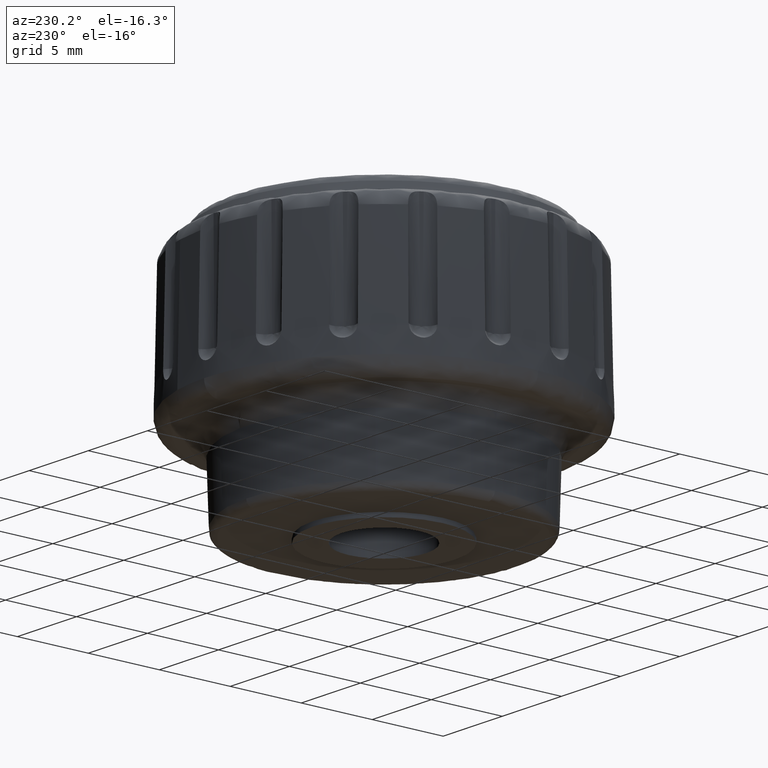
[diagram: clean part render]
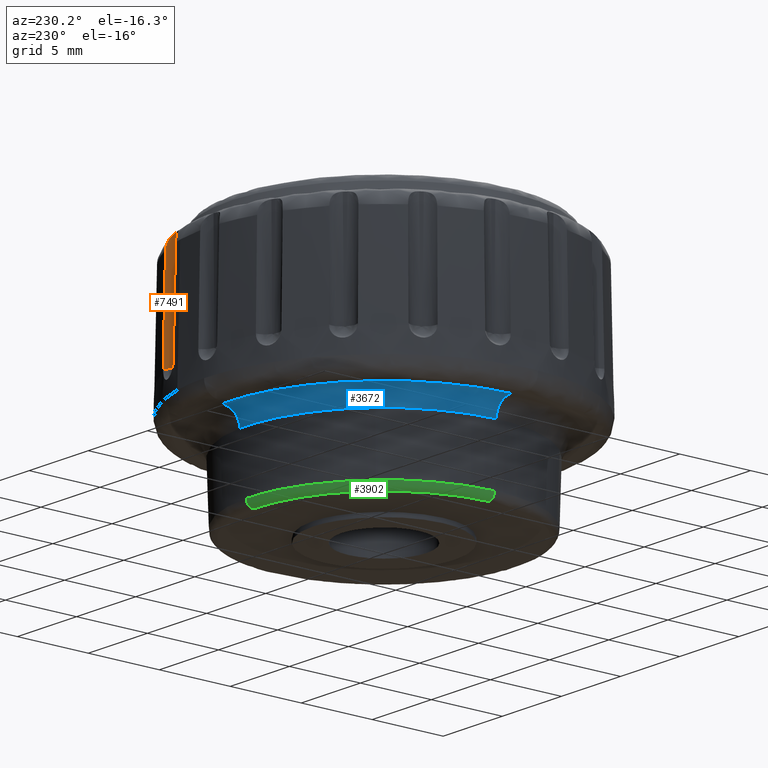
[diagram: same view with three faces highlighted in distinct colors, each labeled with its STEP entity id]
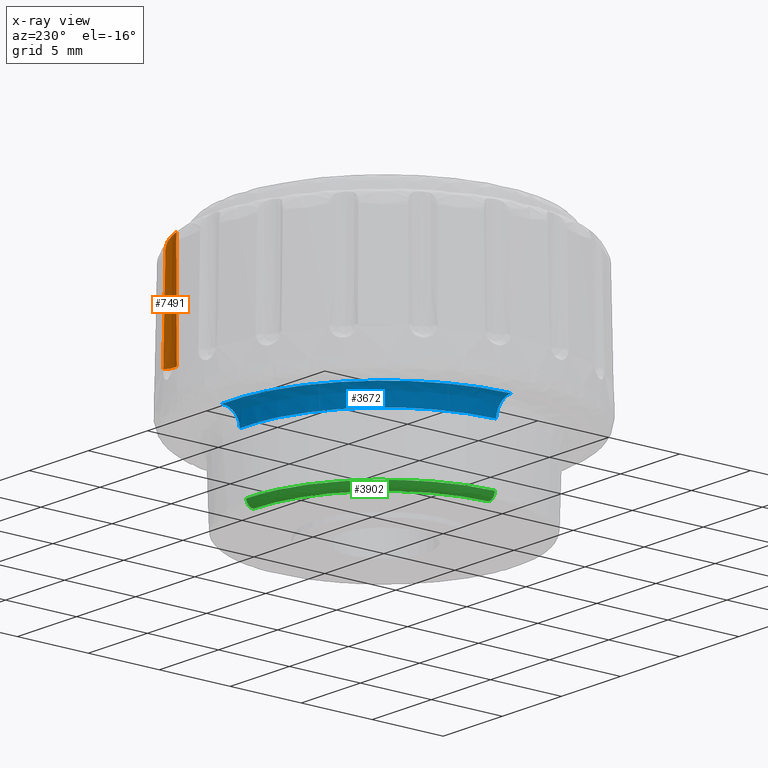
[diagram: x-ray of the same camera — body ghosted, the three highlighted faces saturated]
A machine part, auxiliary view with three faces highlighted in distinct colors.
The next image is the same camera in x-ray (body ghosted, the three faces saturated) — at least one of them is partly hidden behind the body in this view.
Their STEP definitions:

[orange] entity #7491 — the highlighted face is a freeform B-spline surface patch.
#1833=CARTESIAN_POINT('',(4.998808680543220,11.395073377640021,8.800002999999810));
#1834=VERTEX_POINT('',#1833);
#1882=CARTESIAN_POINT('',(4.952143385953650,11.266861534483120,15.524289876473100));
#1883=VERTEX_POINT('',#1882);
#1884=CARTESIAN_POINT('',(4.952143385953650,11.266861534483120,15.524289876473100));
#1885=CARTESIAN_POINT('',(4.998808680543220,11.395073377640021,8.800002999999810));
#1886=QUASI_UNIFORM_CURVE('',1,(#1884,#1885),.UNSPECIFIED.,.F.,.U.);
#1887=EDGE_CURVE('',#1883,#1834,#1886,.T.);
#4228=CARTESIAN_POINT('',(4.191839101503629,11.138007640149519,16.400364117337599));
#4229=VERTEX_POINT('',#4228);
#4230=CARTESIAN_POINT('',(4.952143385953650,11.266861534483120,15.524289876473100));
#4231=CARTESIAN_POINT('',(4.951757397201977,11.265801039103730,15.579908058427170));
#4232=CARTESIAN_POINT('',(4.948000886063662,11.262033773872201,15.634737434845441));
#4233=CARTESIAN_POINT('',(4.933507183190008,11.249587175474780,15.742842968018399));
#4234=CARTESIAN_POINT('',(4.922778209850794,11.240900975107190,15.796119486342210));
#4235=CARTESIAN_POINT('',(4.892801458195739,11.219265305523599,15.900977825317259));
#4236=CARTESIAN_POINT('',(4.873845331535049,11.206541433400790,15.951387691156590));
#4237=CARTESIAN_POINT('',(4.838579666667000,11.186070288749571,16.023099733338778));
#4238=CARTESIAN_POINT('',(4.825666636058597,11.179010690541920,16.046389131582210));
#4239=CARTESIAN_POINT('',(4.797222918052006,11.164704730357681,16.091673406006340));
#4240=CARTESIAN_POINT('',(4.781596090629875,11.157422228195159,16.113768571365611));
#4241=CARTESIAN_POINT('',(4.731404389211368,11.136321096122900,16.176549535844369));
#4242=CARTESIAN_POINT('',(4.693373776298101,11.123098196398400,16.214152117714949));
#4243=CARTESIAN_POINT('',(4.628476651513564,11.107171961516880,16.264071124665922));
#4244=CARTESIAN_POINT('',(4.605592810734239,11.102561088288139,16.279537166770439));
#4245=CARTESIAN_POINT('',(4.558579865754143,11.095380055748180,16.307420857541508));
#4246=CARTESIAN_POINT('',(4.534290680475757,11.092766046310800,16.319969034108752));
#4247=CARTESIAN_POINT('',(4.484189639275534,11.089852587694390,16.342427248912941));
#4248=CARTESIAN_POINT('',(4.458378547647553,11.089551155766360,16.352338466752371));
#4249=CARTESIAN_POINT('',(4.405215832608656,11.091691142293920,16.369562468626739));
#4250=CARTESIAN_POINT('',(4.378524001817483,11.094110386513661,16.376661733452060));
#4251=CARTESIAN_POINT('',(4.325131599196458,11.101726842837660,16.388091417198950));
#4252=CARTESIAN_POINT('',(4.298407674850782,11.106923944180100,16.392429307540912));
#4253=CARTESIAN_POINT('',(4.244948124637483,11.120258458635551,16.398436418129702));
#4254=CARTESIAN_POINT('',(4.218126431390258,11.128439834532459,16.400095660952161));
#4255=CARTESIAN_POINT('',(4.191839101503629,11.138007640149519,16.400364117337599));
#4256=B_SPLINE_CURVE_WITH_KNOTS('',3,(#4230,#4231,#4232,#4233,#4234,#4235,#4236,#4237,#4238,#4239,#4240,#4241,#4242,#4243,#4244,#4245,#4246,#4247,#4248,#4249,#4250,#4251,#4252,#4253,#4254,#4255),.UNSPECIFIED.,.F.,.U.,(4,2,2,2,2,2,2,2,2,2,2,2,4),(0.0,0.124999999999996,0.249999999999992,0.374999999999988,0.437499999999990,0.499999999999992,0.624999999999994,0.687499999999995,0.749999999999996,0.812499999999997,0.874999999999998,0.937499999999999,1.0),.UNSPECIFIED.);
#4257=EDGE_CURVE('',#1883,#4229,#4256,.T.);
#7447=CARTESIAN_POINT('',(4.998808680543024,11.395073377640131,8.800002999999801));
#7448=CARTESIAN_POINT('',(4.981141992634241,11.346534551472089,11.345762252515680));
#7449=CARTESIAN_POINT('',(4.963475024866861,11.297994956491451,13.891496173125979));
#7450=CARTESIAN_POINT('',(4.945808420869679,11.249456360962331,16.437109524258879));
#7451=CARTESIAN_POINT('',(4.638275253343533,10.975518169379452,8.801498297712289));
#7452=CARTESIAN_POINT('',(4.618251224095866,10.982806320007533,11.347732643414208));
#7453=CARTESIAN_POINT('',(4.605091248903420,10.987596159250893,13.894024100569155));
#7454=CARTESIAN_POINT('',(4.599314763999329,10.989698627813185,16.440246823976178));
#7455=CARTESIAN_POINT('',(4.118467037917753,11.164712887321469,8.805733708062078));
#7456=CARTESIAN_POINT('',(4.136791027082431,11.158043500692569,11.352540706304721));
#7457=CARTESIAN_POINT('',(4.160695066331244,11.149343141927121,13.899324579949541));
#7458=CARTESIAN_POINT('',(4.192406319388144,11.137801189723220,16.445984915250818));
#7466=(BOUNDED_SURFACE()B_SPLINE_SURFACE(3,2,((#7447,#7451,#7455),(#7448,#7452,#7456),(#7449,#7453,#7457),(#7450,#7454,#7458)),.UNSPECIFIED.,.F.,.F.,.U.)B_SPLINE_SURFACE_WITH_KNOTS((4,4),(3,3),(0.0,7.721161193759876),(0.0,1.0),.UNSPECIFIED.)GEOMETRIC_REPRESENTATION_ITEM()RATIONAL_B_SPLINE_SURFACE(((1.0,0.822510399759739,1.0),(1.0,0.842134723258429,1.0),(1.0,0.861061522385606,1.0),(1.0,0.879417337212345,1.0)))REPRESENTATION_ITEM('')SURFACE());
#7467=CARTESIAN_POINT('',(4.118467037917975,11.164712887321400,8.805733708062050));
#7468=VERTEX_POINT('',#7467);
#7469=CARTESIAN_POINT('',(4.998808680543220,11.395073377640021,8.800002999999810));
#7470=CARTESIAN_POINT('',(4.942985639907982,11.330031119075390,8.800234312704918));
#7471=CARTESIAN_POINT('',(4.829679302456356,11.234670793671050,8.800799816571832));
#7472=CARTESIAN_POINT('',(4.644862899420459,11.150790644678890,8.801909890714020));
#7473=CARTESIAN_POINT('',(4.471303690349750,11.114037189664341,8.803062382456350));
#7474=CARTESIAN_POINT('',(4.293724045536555,11.115596503715560,8.804344131377622));
#7475=CARTESIAN_POINT('',(4.175312808602572,11.144012569983211,8.805270500722571));
#7476=CARTESIAN_POINT('',(4.118467037917975,11.164712887321400,8.805733708062050));
#7477=B_SPLINE_CURVE_WITH_KNOTS('',3,(#7469,#7470,#7471,#7472,#7473,#7474,#7475,#7476),.UNSPECIFIED.,.F.,.U.,(4,1,1,1,1,4),(0.000000027471275,0.257123013934940,0.438627068675293,0.604993775773785,0.786492946229386,0.967991058824338),.UNSPECIFIED.);
#7478=EDGE_CURVE('',#1834,#7468,#7477,.T.);
#7479=ORIENTED_EDGE('',*,*,#7478,.T.);
#7480=CARTESIAN_POINT('',(4.191839101503629,11.138007640149519,16.400364117337599));
#7481=CARTESIAN_POINT('',(4.160412133904686,11.149446120908779,13.868903467068330));
#7482=CARTESIAN_POINT('',(4.136681665062008,11.158083305212701,11.337340769060660));
#7483=CARTESIAN_POINT('',(4.118467037917975,11.164712887321400,8.805733708062050));
#7484=QUASI_UNIFORM_CURVE('',3,(#7480,#7481,#7482,#7483),.UNSPECIFIED.,.F.,.U.);
#7485=EDGE_CURVE('',#4229,#7468,#7484,.T.);
#7486=ORIENTED_EDGE('',*,*,#7485,.F.);
#7487=ORIENTED_EDGE('',*,*,#4257,.F.);
#7488=ORIENTED_EDGE('',*,*,#1887,.T.);
#7489=EDGE_LOOP('',(#7479,#7486,#7487,#7488));
#7490=FACE_OUTER_BOUND('',#7489,.T.);
#7491=ADVANCED_FACE('',(#7490),#7466,.F.);

[blue] entity #3672 — the highlighted face is a freeform B-spline surface patch.
#1396=CARTESIAN_POINT('',(-7.091620016946317,6.498272501712165,4.831420556919911));
#1397=VERTEX_POINT('',#1396);
#1403=CARTESIAN_POINT('',(0.670740437602922,9.595245044403225,4.831421001800820));
#1404=VERTEX_POINT('',#1403);
#1405=CARTESIAN_POINT('',(-7.091620016946317,6.498272501712165,4.831420556919911));
#1406=CARTESIAN_POINT('',(-6.757015564982577,6.863479604386380,4.831420573719243));
#1407=CARTESIAN_POINT('',(-6.130165259743532,7.449467416923433,4.831420606198816));
#1408=CARTESIAN_POINT('',(-5.101217936245286,8.181520345119951,4.831420661871003));
#1409=CARTESIAN_POINT('',(-4.110797482058933,8.721297754972481,4.831420717150437));
#1410=CARTESIAN_POINT('',(-2.958859848073892,9.180898165850465,4.831420783170876));
#1411=CARTESIAN_POINT('',(-1.821350774396432,9.471009974842064,4.831420850044522));
#1412=CARTESIAN_POINT('',(-0.568386306073973,9.626286453879311,4.831420925391594));
#1413=CARTESIAN_POINT('',(0.221553780546700,9.626666665905816,4.831420973895301));
#1414=CARTESIAN_POINT('',(0.670740437602922,9.595245044403225,4.831421001800820));
#1415=B_SPLINE_CURVE_WITH_KNOTS('',3,(#1405,#1406,#1407,#1408,#1409,#1410,#1411,#1412,#1413,#1414),.UNSPECIFIED.,.F.,.U.,(4,1,1,1,1,1,1,4),(1.092673E-009,1.485940040450902,2.566626372317892,3.782397828070034,4.863075657889571,6.281477043662079,7.294621377522667,8.645474102517301),.UNSPECIFIED.);
#1416=EDGE_CURVE('',#1397,#1404,#1415,.T.);
#1501=CARTESIAN_POINT('',(-9.617900552514328,0.120868465202919,4.831421055692891));
#1502=VERTEX_POINT('',#1501);
#1510=CARTESIAN_POINT('',(-9.617900552514328,0.120868465202919,4.831421055692891));
#1511=CARTESIAN_POINT('',(-9.614229236711518,0.413090456322591,4.831421032908760));
#1512=CARTESIAN_POINT('',(-9.572802532351421,1.124979075598546,4.831420977383458));
#1513=CARTESIAN_POINT('',(-9.403243104581527,2.117350185540474,4.831420899911072));
#1514=CARTESIAN_POINT('',(-9.114887999307641,3.118877012646245,4.831420821650296));
#1515=CARTESIAN_POINT('',(-8.710769961785518,4.139123930567073,4.831420741857441));
#1516=CARTESIAN_POINT('',(-8.066824311787187,5.310871059734204,4.831420650102860));
#1517=CARTESIAN_POINT('',(-7.449511673907006,6.107766586126360,4.831420587588761));
#1518=CARTESIAN_POINT('',(-7.091620016946317,6.498272501712165,4.831420556919911));
#1519=B_SPLINE_CURVE_WITH_KNOTS('',3,(#1510,#1511,#1512,#1513,#1514,#1515,#1516,#1517,#1518),.UNSPECIFIED.,.F.,.U.,(4,1,1,1,1,1,4),(2.789434E-009,0.876737393546693,2.137055801765936,3.013795702432945,4.000126820879091,5.424831216021401,7.013922520523146),.UNSPECIFIED.);
#1520=EDGE_CURVE('',#1502,#1397,#1519,.T.);
#3462=CARTESIAN_POINT('',(0.754204565518100,10.789237108793451,5.999998500495471));
#3463=VERTEX_POINT('',#3462);
#3464=CARTESIAN_POINT('',(0.670740437602922,9.595245044403225,4.831421001800820));
#3465=CARTESIAN_POINT('',(0.670863419889352,9.597004361582059,4.898875334487622));
#3466=CARTESIAN_POINT('',(0.672016869729839,9.613504982754460,5.047911041001797));
#3467=CARTESIAN_POINT('',(0.676865894332006,9.682872470795610,5.274917855741547));
#3468=CARTESIAN_POINT('',(0.684763241942027,9.795847596896225,5.478227207120213));
#3469=CARTESIAN_POINT('',(0.694910066009423,9.941002500180510,5.652759094478349));
#3470=CARTESIAN_POINT('',(0.705746968836736,10.096029291948231,5.783951641043132));
#3471=CARTESIAN_POINT('',(0.719155739037928,10.287847808637521,5.895694035560918));
#3472=CARTESIAN_POINT('',(0.735050442783832,10.515228727991641,5.977775816406522));
#3473=CARTESIAN_POINT('',(0.747482272177964,10.693071664990070,5.999806495690716));
#3474=CARTESIAN_POINT('',(0.754204565518100,10.789237108793451,5.999998500495471));
#3475=B_SPLINE_CURVE_WITH_KNOTS('',3,(#3464,#3465,#3466,#3467,#3468,#3469,#3470,#3471,#3472,#3473,#3474),.UNSPECIFIED.,.F.,.U.,(4,1,1,1,1,1,1,1,4),(0.000000033903131,0.202433992220359,0.448255148775937,0.708534029633763,0.896517850868038,1.127861492492281,1.315845550270464,1.561664333673829,1.850860309355150),.UNSPECIFIED.);
#3476=EDGE_CURVE('',#1404,#3463,#3475,.T.);
#3498=CARTESIAN_POINT('',(-10.817402271871210,0.067982860923598,5.999999291158366));
#3499=VERTEX_POINT('',#3498);
#3600=CARTESIAN_POINT('',(-9.617900552514328,0.120868465202919,4.831421055692891));
#3601=CARTESIAN_POINT('',(-9.620703670775448,0.117815698446417,4.937558750829694));
#3602=CARTESIAN_POINT('',(-9.647022638788890,0.112752898916429,5.100963250684579));
#3603=CARTESIAN_POINT('',(-9.748707536157669,0.103520136674190,5.367695536988892));
#3604=CARTESIAN_POINT('',(-9.889330825624892,0.095217204329980,5.578930860008435));
#3605=CARTESIAN_POINT('',(-10.067940849685730,0.087634300009315,5.742629816983003));
#3606=CARTESIAN_POINT('',(-10.264565160632589,0.080648215259547,5.874770868418755));
#3607=CARTESIAN_POINT('',(-10.508486904321799,0.073813577464404,5.974026661371502));
#3608=CARTESIAN_POINT('',(-10.720858152396991,0.069577079222555,5.999932260138341));
#3609=CARTESIAN_POINT('',(-10.817402271871210,0.067982860923598,5.999999291158366));
#3610=B_SPLINE_CURVE_WITH_KNOTS('',3,(#3600,#3601,#3602,#3603,#3604,#3605,#3606,#3607,#3608,#3609),.UNSPECIFIED.,.F.,.U.,(4,1,1,1,1,1,1,4),(0.000000033992081,0.318645094862750,0.492452268880249,0.854550654247519,1.071806318702990,1.216644981195206,1.564259979840829,1.853936629235598),.UNSPECIFIED.);
#3611=EDGE_CURVE('',#1502,#3499,#3610,.T.);
#3618=CARTESIAN_POINT('',(-9.620215754807749,-0.009840532384850,4.749006499875351));
#3619=CARTESIAN_POINT('',(-9.619396707962766,0.055333713765331,4.749006499875351));
#3620=CARTESIAN_POINT('',(-9.497696108253445,9.739449940611682,4.749006499875351));
#3621=CARTESIAN_POINT('',(0.120876916179117,9.618573024432561,4.749006499875351));
#3622=CARTESIAN_POINT('',(0.396156078080838,9.615113582362046,4.749006499875349));
#3623=CARTESIAN_POINT('',(0.707089197243890,9.593378311403717,4.749006499875351));
#3624=CARTESIAN_POINT('',(0.743496411102354,9.590833324687020,4.749006499875350));
#3625=CARTESIAN_POINT('',(-9.563241203844202,-0.009782253035596,6.088420961731536));
#3626=CARTESIAN_POINT('',(-9.562427007703958,0.055006006614548,6.088420961731536));
#3627=CARTESIAN_POINT('',(-9.441447164908739,9.681769239768659,6.088420961731537));
#3628=CARTESIAN_POINT('',(0.120161037429961,9.561608202338704,6.088420961731538));
#3629=CARTESIAN_POINT('',(0.393809892170313,9.558169248390652,6.088420961731535));
#3630=CARTESIAN_POINT('',(0.702901547971678,9.536562701915697,6.088420961731536));
#3631=CARTESIAN_POINT('',(0.739093144559772,9.534032787571496,6.088420961731535));
#3632=CARTESIAN_POINT('',(-10.900883730451175,-0.011150529479485,5.997220042868380));
#3633=CARTESIAN_POINT('',(-10.899955649974133,0.062699880699504,5.997220042868380));
#3634=CARTESIAN_POINT('',(-10.762053952011225,11.035990679117484,5.997220042868379));
#3635=CARTESIAN_POINT('',(0.136968363553129,10.899022315564356,5.997220042868380));
#3636=CARTESIAN_POINT('',(0.448893398686259,10.895102343627752,5.997220042868380));
#3637=CARTESIAN_POINT('',(0.801218737985335,10.870473617245178,5.997220042868380));
#3638=CARTESIAN_POINT('',(0.842472574212704,10.867589835321638,5.997220042868380));
#3646=(BOUNDED_SURFACE()B_SPLINE_SURFACE(2,2,((#3618,#3625,#3632),(#3619,#3626,#3633),(#3620,#3627,#3634),(#3621,#3628,#3635),(#3622,#3629,#3636),(#3623,#3630,#3637),(#3624,#3631,#3638)),.UNSPECIFIED.,.F.,.F.,.U.)B_SPLINE_SURFACE_WITH_KNOTS((3,1,2,1,3),(3,3),(0.0,0.174528235425443,18.234045577850999,18.956425582632100,19.050736863070529),(0.0,2.145643470048274),.UNSPECIFIED.)GEOMETRIC_REPRESENTATION_ITEM()RATIONAL_B_SPLINE_SURFACE(((0.921328971115605,0.614538198199450,0.921510640459892),(0.918735795300132,0.612808516790077,0.918916953317233),(0.647810658771609,0.432097988337274,0.647938395271047),(0.916142619484659,0.611078835380704,0.916323266174574),(0.905409351292189,0.603919608326544,0.905587881576503),(0.894245551238842,0.596473211019038,0.894421880224490),(0.892956358741451,0.595613303147565,0.893132433521746)))REPRESENTATION_ITEM('')SURFACE());
#3647=ORIENTED_EDGE('',*,*,#1520,.F.);
#3648=ORIENTED_EDGE('',*,*,#3611,.T.);
#3649=CARTESIAN_POINT('',(-10.817402271871210,0.067982860923598,5.999999291158366));
#3650=CARTESIAN_POINT('',(-10.813600333351340,0.666421851063297,5.999999270631030));
#3651=CARTESIAN_POINT('',(-10.735131741218300,1.540568963907148,5.999999237965869));
#3652=CARTESIAN_POINT('',(-10.474959154981580,2.756897060994024,5.999999186963279));
#3653=CARTESIAN_POINT('',(-10.113932250983790,3.923835001187676,5.999999133935516));
#3654=CARTESIAN_POINT('',(-9.515898198519590,5.224559954635404,5.999999067636781));
#3655=CARTESIAN_POINT('',(-8.772525798320654,6.364698427418791,5.999999001465660));
#3656=CARTESIAN_POINT('',(-7.955053848454313,7.362712664147749,5.999998937412401));
#3657=CARTESIAN_POINT('',(-7.178625632036571,8.119835050363740,5.999998883074478));
#3658=CARTESIAN_POINT('',(-6.235542965071114,8.858249278437468,5.999998823247493));
#3659=CARTESIAN_POINT('',(-5.283553526322639,9.466488033623440,5.999998767527505));
#3660=CARTESIAN_POINT('',(-3.996470260266240,10.088950885185600,5.999998699003749));
#3661=CARTESIAN_POINT('',(-2.699069433988595,10.504553064711940,5.999998637148327));
#3662=CARTESIAN_POINT('',(-1.067419691628286,10.805381782356120,5.999998566914692));
#3663=CARTESIAN_POINT('',(0.019445247105849,10.840740064178121,5.999998525752893));
#3664=CARTESIAN_POINT('',(0.754204565518100,10.789237108793451,5.999998500495471));
#3665=B_SPLINE_CURVE_WITH_KNOTS('',3,(#3649,#3650,#3651,#3652,#3653,#3654,#3655,#3656,#3657,#3658,#3659,#3660,#3661,#3662,#3663,#3664),.UNSPECIFIED.,.F.,.U.,(4,1,1,1,1,1,1,1,1,1,1,1,1,4),(3.077240E-009,1.795342690952399,2.623963778233660,3.728795329971597,5.455090043243443,6.905183988383827,7.802857476785778,9.321978221057057,10.150608122854850,11.393536439658419,12.705523973826720,14.431822367952231,15.467601827727920,17.677251742238891),.UNSPECIFIED.);
#3666=EDGE_CURVE('',#3499,#3463,#3665,.T.);
#3667=ORIENTED_EDGE('',*,*,#3666,.T.);
#3668=ORIENTED_EDGE('',*,*,#3476,.F.);
#3669=ORIENTED_EDGE('',*,*,#1416,.F.);
#3670=EDGE_LOOP('',(#3647,#3648,#3667,#3668,#3669));
#3671=FACE_OUTER_BOUND('',#3670,.T.);
#3672=ADVANCED_FACE('',(#3671),#3646,.F.);

[green] entity #3902 — the highlighted face is a freeform B-spline surface patch.
#1363=CARTESIAN_POINT('',(0.239056302376872,9.509745252401981,0.786914354403101));
#1364=VERTEX_POINT('',#1363);
#1382=CARTESIAN_POINT('',(-7.013426588206967,6.426621146089087,0.786989000532859));
#1383=VERTEX_POINT('',#1382);
#1384=CARTESIAN_POINT('',(-7.013426588206967,6.426621146089087,0.786989000532859));
#1385=CARTESIAN_POINT('',(-6.613218575487259,6.863510910944570,0.786982890182749));
#1386=CARTESIAN_POINT('',(-5.951370402768760,7.462401248440672,0.786973707898885));
#1387=CARTESIAN_POINT('',(-4.811483350161494,8.234749175250524,0.786959827569562));
#1388=CARTESIAN_POINT('',(-3.601801169650186,8.852372264205146,0.786946605302935));
#1389=CARTESIAN_POINT('',(-2.203579931677132,9.292875596937009,0.786933362902442));
#1390=CARTESIAN_POINT('',(-0.883149781773938,9.494686270990242,0.786922456044639));
#1391=CARTESIAN_POINT('',(-0.120547821690389,9.518794916840372,0.786916846952775));
#1392=CARTESIAN_POINT('',(0.239056302376872,9.509745252401981,0.786914354403101));
#1393=B_SPLINE_CURVE_WITH_KNOTS('',3,(#1384,#1385,#1386,#1387,#1388,#1389,#1390,#1391,#1392),.UNSPECIFIED.,.F.,.U.,(4,1,1,1,1,1,4),(1.737630E-009,1.777436907919989,2.666156857596556,4.126192574627476,5.840151688558562,7.046274156011323,8.125429562971135),.UNSPECIFIED.);
#1394=EDGE_CURVE('',#1383,#1364,#1393,.T.);
#1487=CARTESIAN_POINT('',(-9.511251129716865,0.119528245787760,0.787059724340032));
#1488=VERTEX_POINT('',#1487);
#1523=CARTESIAN_POINT('',(-9.511251129716865,0.119528245787760,0.787059724340032));
#1524=CARTESIAN_POINT('',(-9.506751221795751,0.480768427182907,0.787056746658096));
#1525=CARTESIAN_POINT('',(-9.451502629622899,1.274932739661006,0.787049849170766));
#1526=CARTESIAN_POINT('',(-9.244755813021358,2.322967771226444,0.787039710325077));
#1527=CARTESIAN_POINT('',(-8.896309883640937,3.426378016221567,0.787028023044498));
#1528=CARTESIAN_POINT('',(-8.438695811520661,4.451661651758569,0.787016126819253));
#1529=CARTESIAN_POINT('',(-7.782010578240801,5.513893983961091,0.787002387979494));
#1530=CARTESIAN_POINT('',(-7.281887581886371,6.133616110817893,0.786993466461071));
#1531=CARTESIAN_POINT('',(-7.013426588206967,6.426621146089087,0.786989000532859));
#1532=B_SPLINE_CURVE_WITH_KNOTS('',3,(#1523,#1524,#1525,#1526,#1527,#1528,#1529,#1530,#1531),.UNSPECIFIED.,.F.,.U.,(4,1,1,1,1,1,4),(3.139561E-009,1.083805822212328,2.384379311656288,3.197234589454134,4.551991086683850,5.744182925469151,6.936370429441420),.UNSPECIFIED.);
#1533=EDGE_CURVE('',#1488,#1383,#1532,.T.);
#3706=CARTESIAN_POINT('',(-9.013663081773444,0.113302225684569,0.300012387994850));
#3707=VERTEX_POINT('',#3706);
#3708=CARTESIAN_POINT('',(-9.511251129716865,0.119528245787760,0.787059724340032));
#3709=CARTESIAN_POINT('',(-9.509814602295041,0.119906070229045,0.722832891489406));
#3710=CARTESIAN_POINT('',(-9.487727078713167,0.120122363611318,0.623018630227555));
#3711=CARTESIAN_POINT('',(-9.417681436045237,0.119587382573539,0.500260990597607));
#3712=CARTESIAN_POINT('',(-9.324214846643892,0.118476838902431,0.399418270462446));
#3713=CARTESIAN_POINT('',(-9.186212684809549,0.116398088438802,0.320210491234348));
#3714=CARTESIAN_POINT('',(-9.069857219773878,0.114351435785812,0.300085659611033));
#3715=CARTESIAN_POINT('',(-9.013663081773444,0.113302225684569,0.300012387994850));
#3716=B_SPLINE_CURVE_WITH_KNOTS('',3,(#3708,#3709,#3710,#3711,#3712,#3713,#3714,#3715),.UNSPECIFIED.,.F.,.U.,(4,1,1,1,1,4),(0.000000047901107,0.192697331010784,0.301095174287381,0.421515844562849,0.602178236674134,0.770787719558922),.UNSPECIFIED.);
#3717=EDGE_CURVE('',#1488,#3707,#3716,.T.);
#3821=CARTESIAN_POINT('',(0.226495541120300,9.010073674901324,0.300003000000261));
#3822=VERTEX_POINT('',#3821);
#3842=CARTESIAN_POINT('',(0.239056302376872,9.509745252401981,0.786914354403101));
#3843=CARTESIAN_POINT('',(0.239015462772911,9.508120638342350,0.722565337252038));
#3844=CARTESIAN_POINT('',(0.238453210456236,9.485754039989843,0.622604123789362));
#3845=CARTESIAN_POINT('',(0.236782438001406,9.419290113871217,0.506803770486061));
#3846=CARTESIAN_POINT('',(0.234759985234525,9.338836219094786,0.416129529714799));
#3847=CARTESIAN_POINT('',(0.231447042463814,9.207046170180051,0.327572038368652));
#3848=CARTESIAN_POINT('',(0.228315408693973,9.082468658199206,0.299907565459754));
#3849=CARTESIAN_POINT('',(0.226495541120300,9.010073674901324,0.300003000000261));
#3850=B_SPLINE_CURVE_WITH_KNOTS('',3,(#3842,#3843,#3844,#3845,#3846,#3847,#3848,#3849),.UNSPECIFIED.,.F.,.U.,(4,1,1,1,1,4),(0.000000047882662,0.193082220940624,0.301696772150908,0.398224554876852,0.555110115523610,0.772327533350989),.UNSPECIFIED.);
#3851=EDGE_CURVE('',#1364,#3822,#3850,.T.);
#3856=CARTESIAN_POINT('',(-9.514134021008587,0.053239026488144,0.821295242057273));
#3857=CARTESIAN_POINT('',(-9.511808059045075,0.145766625718118,0.821295242057272));
#3858=CARTESIAN_POINT('',(-9.270413908160840,9.748512328318073,0.821295242057272));
#3859=CARTESIAN_POINT('',(0.272918913931378,9.508611700462144,0.821295242057272));
#3860=CARTESIAN_POINT('',(0.306688829198080,9.507762791173727,0.821295242057272));
#3861=CARTESIAN_POINT('',(-9.537947093438175,0.053372279266699,0.262704399083624));
#3862=CARTESIAN_POINT('',(-9.535615309788685,0.146131467248454,0.262704399083624));
#3863=CARTESIAN_POINT('',(-9.293616969770012,9.772912029819276,0.262704399083624));
#3864=CARTESIAN_POINT('',(0.273602006880300,9.532410950990672,0.262704399083624));
#3865=CARTESIAN_POINT('',(0.307456445387521,9.531559916954137,0.262704399083624));
#3866=CARTESIAN_POINT('',(-8.980077422126421,0.050250561815346,0.301188908995942));
#3867=CARTESIAN_POINT('',(-8.977882023315861,0.137584312100331,0.301188908995942));
#3868=CARTESIAN_POINT('',(-8.750038043043755,9.201299378960187,0.301188908995942));
#3869=CARTESIAN_POINT('',(0.257599164743174,8.974865085833141,0.301188908995942));
#3870=CARTESIAN_POINT('',(0.289473474371775,8.974063828344283,0.301188908995942));
#3878=(BOUNDED_SURFACE()B_SPLINE_SURFACE(2,2,((#3856,#3861,#3866),(#3857,#3862,#3867),(#3858,#3863,#3868),(#3859,#3864,#3869),(#3860,#3865,#3870)),.UNSPECIFIED.,.F.,.F.,.U.)B_SPLINE_SURFACE_WITH_KNOTS((3,1,1,3),(3,3),(0.0,0.219535760287492,15.980307558771020,16.059811574708139),(0.0,0.894599288389270),.UNSPECIFIED.)GEOMETRIC_REPRESENTATION_ITEM()RATIONAL_B_SPLINE_SURFACE(((0.923344311644463,0.613944928704912,0.918644782167881),(0.919607755510080,0.611460438725827,0.914927243918239),(0.647618735772012,0.430611022938333,0.644322561961262),(0.917224378548279,0.609875697063983,0.912555997588689),(0.918577557720861,0.610775445381223,0.913902289508781)))REPRESENTATION_ITEM('')SURFACE());
#3879=ORIENTED_EDGE('',*,*,#1533,.T.);
#3880=ORIENTED_EDGE('',*,*,#1394,.T.);
#3881=ORIENTED_EDGE('',*,*,#3851,.T.);
#3882=CARTESIAN_POINT('',(-9.013663081773444,0.113302225684569,0.300012387994850));
#3883=CARTESIAN_POINT('',(-9.006193415147974,0.707913207045778,0.300012082186250));
#3884=CARTESIAN_POINT('',(-8.916598236056586,1.505866687451071,0.300011629849614));
#3885=CARTESIAN_POINT('',(-8.637373000604280,2.624345284015876,0.300010914818818));
#3886=CARTESIAN_POINT('',(-8.286168304473105,3.625592974141984,0.300010221356804));
#3887=CARTESIAN_POINT('',(-7.726833224266796,4.700919477708825,0.300009380562741));
#3888=CARTESIAN_POINT('',(-6.924330676842551,5.820532116886413,0.300008389090576));
#3889=CARTESIAN_POINT('',(-6.056872173695195,6.720138087309462,0.300007475066843));
#3890=CARTESIAN_POINT('',(-5.023391659805805,7.514172973231670,0.300006527114348));
#3891=CARTESIAN_POINT('',(-3.943698756409862,8.139960579140508,0.300005640214585));
#3892=CARTESIAN_POINT('',(-2.662816087743944,8.651496716516915,0.300004705252868));
#3893=CARTESIAN_POINT('',(-1.243071318500163,8.967654250151270,0.300003796274019));
#3894=CARTESIAN_POINT('',(-0.256505650048092,9.022259471435435,0.300003248446354));
#3895=CARTESIAN_POINT('',(0.226495541120300,9.010073674901324,0.300003000000261));
#3896=B_SPLINE_CURVE_WITH_KNOTS('',3,(#3882,#3883,#3884,#3885,#3886,#3887,#3888,#3889,#3890,#3891,#3892,#3893,#3894,#3895),.UNSPECIFIED.,.F.,.U.,(4,1,1,1,1,1,1,1,1,1,1,4),(9.949487E-009,1.783950384259402,2.397186666348450,3.456412877163075,4.961629846604248,6.020855988300260,7.581800495598287,8.696776367864800,9.923249138219690,11.316967329782370,12.822179842767611,14.271641224991740),.UNSPECIFIED.);
#3897=EDGE_CURVE('',#3707,#3822,#3896,.T.);
#3898=ORIENTED_EDGE('',*,*,#3897,.F.);
#3899=ORIENTED_EDGE('',*,*,#3717,.F.);
#3900=EDGE_LOOP('',(#3879,#3880,#3881,#3898,#3899));
#3901=FACE_OUTER_BOUND('',#3900,.T.);
#3902=ADVANCED_FACE('',(#3901),#3878,.T.);